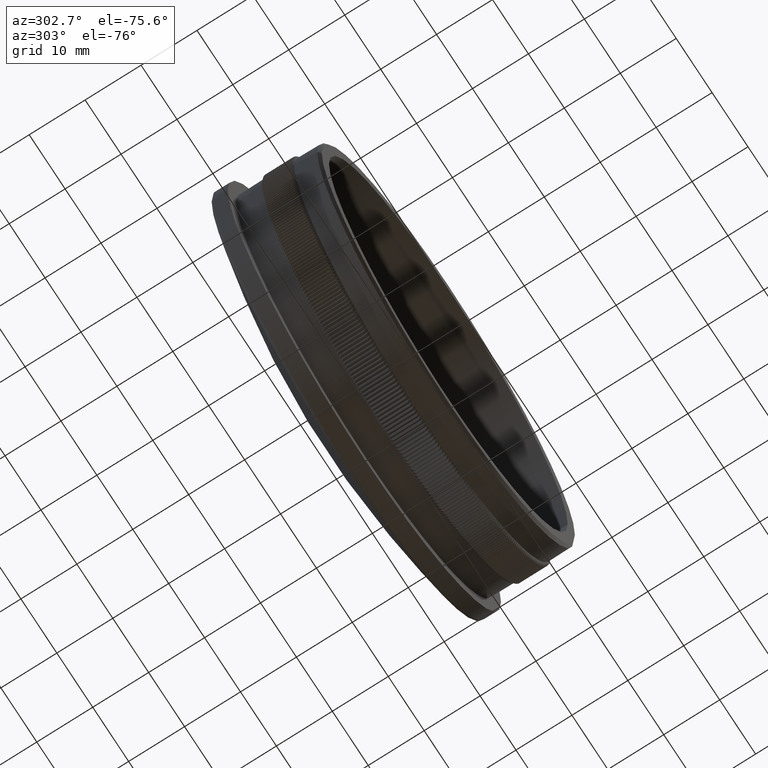
[diagram: clean part render]
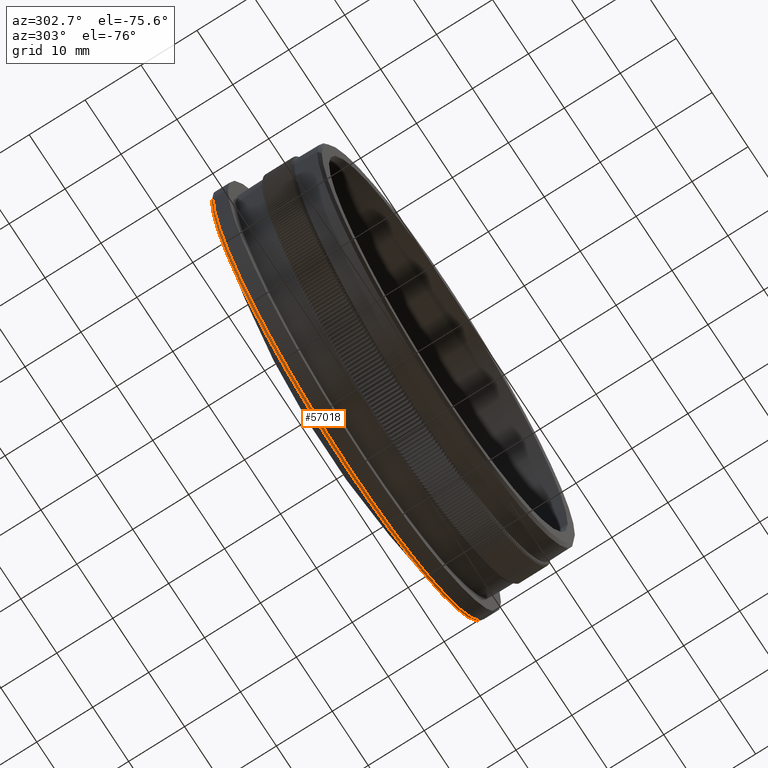
[diagram: same view with one face highlighted and labeled with its STEP entity id]
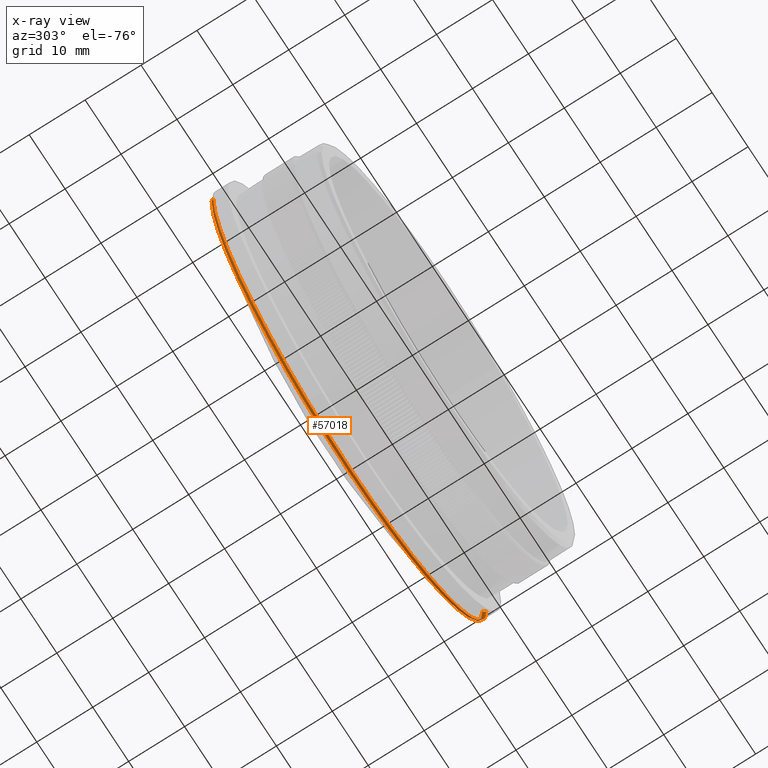
[diagram: x-ray of the same camera — body ghosted, the highlighted face saturated]
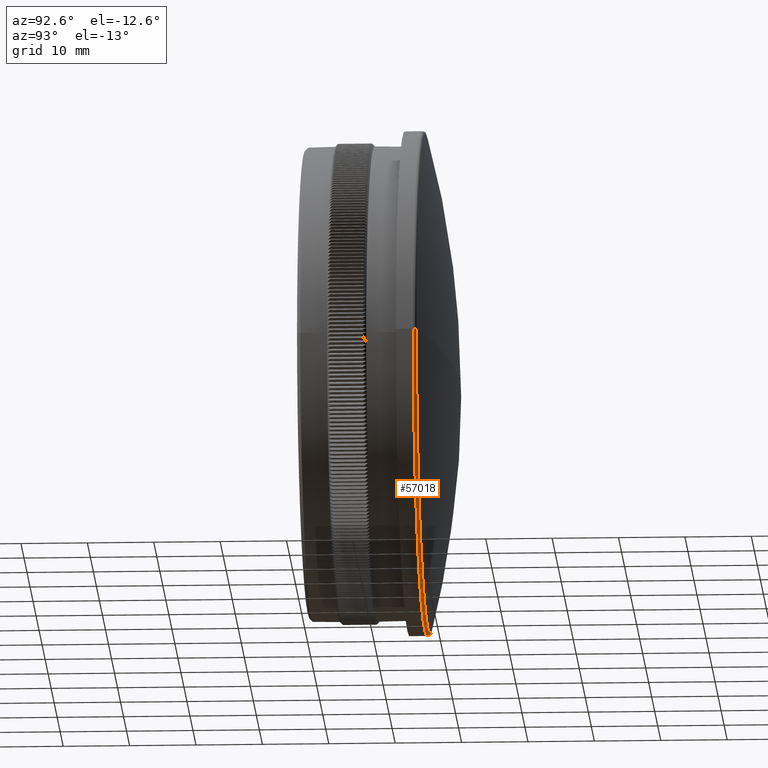
[diagram: same view with one face highlighted and labeled with its STEP entity id]
A machine part, auxiliary view. The second image highlights one B-rep face of the part: STEP entity #57018.
The next image is the same camera in x-ray: the body ghosted, the highlighted face saturated — about 1% of this face is hidden behind the body in this view.
A second angle (auxiliary view) of the same face is appended — the face is thin or edge-on in the first view.
In plain terms, the highlighted toroidal blend (fillet) surface has major radius 37.55 mm and minor (blend) radius 0.5 mm.
Its self-contained STEP definition (entity closure, byte-faithful):
#365 = DIRECTION ( 'NONE',  ( 1.000000000000000000, -3.222860182319315400E-015, 0.0000000000000000000 ) ) ;
#4343 = CARTESIAN_POINT ( 'NONE',  ( 6.811452269998920300E-015, 18.09898642320067800, 0.0000000000000000000 ) ) ;
#4358 = VERTEX_POINT ( 'NONE', #32966 ) ;
#4967 = EDGE_CURVE ( 'NONE', #10119, #30280, #18106, .T. ) ;
#5387 = DIRECTION ( 'NONE',  ( 1.000000000000000000, -3.245114972974590400E-015, 0.0000000000000000000 ) ) ;
#7857 = AXIS2_PLACEMENT_3D ( 'NONE', #49765, #39867, #5387 ) ;
#9492 = DIRECTION ( 'NONE',  ( -1.000000000000000000, 0.0000000000000000000, 0.0000000000000000000 ) ) ;
#10119 = VERTEX_POINT ( 'NONE', #35436 ) ;
#10326 = AXIS2_PLACEMENT_3D ( 'NONE', #39553, #34688, #9492 ) ;
#10957 = TOROIDAL_SURFACE ( 'NONE', #7857, 37.54999999999998300, 0.5000000000000020000 ) ;
#13600 = AXIS2_PLACEMENT_3D ( 'NONE', #55348, #61033, #35343 ) ;
#17857 = CARTESIAN_POINT ( 'NONE',  ( 37.67791230427800300, 18.09898642320055400, 0.0000000000000000000 ) ) ;
#18106 = CIRCLE ( 'NONE', #43555, 37.67791230427797400 ) ;
#20304 = EDGE_CURVE ( 'NONE', #30280, #4358, #22872, .T. ) ;
#22563 = CARTESIAN_POINT ( 'NONE',  ( -38.04999999999998300, 17.61562481693248500, 4.659781070755677400E-015 ) ) ;
#22872 = CIRCLE ( 'NONE', #10326, 0.5000000000000004400 ) ;
#24007 = DIRECTION ( 'NONE',  ( -3.245114972974590400E-015, -1.000000000000000000, -0.0000000000000000000 ) ) ;
#26431 = ORIENTED_EDGE ( 'NONE', *, *, #4967, .T. ) ;
#27755 = EDGE_CURVE ( 'NONE', #10119, #46487, #45891, .T. ) ;
#30280 = VERTEX_POINT ( 'NONE', #17857 ) ;
#32966 = CARTESIAN_POINT ( 'NONE',  ( 38.04999999999999000, 17.61562481693224000, 0.0000000000000000000 ) ) ;
#33483 = ORIENTED_EDGE ( 'NONE', *, *, #27755, .F. ) ;
#34195 = CIRCLE ( 'NONE', #56661, 38.04999999999999000 ) ;
#34688 = DIRECTION ( 'NONE',  ( 0.0000000000000000000, 0.0000000000000000000, -1.000000000000000000 ) ) ;
#35343 = DIRECTION ( 'NONE',  ( 1.000000000000000000, 0.0000000000000000000, -1.224646799147349500E-016 ) ) ;
#35436 = CARTESIAN_POINT ( 'NONE',  ( -37.67791230427751300, 18.09898642320078800, 4.614213470198873300E-015 ) ) ;
#39221 = FACE_OUTER_BOUND ( 'NONE', #50257, .T. ) ;
#39553 = CARTESIAN_POINT ( 'NONE',  ( 37.54999999999999000, 17.61562481693223600, 0.0000000000000000000 ) ) ;
#39867 = DIRECTION ( 'NONE',  ( -3.245114972974590400E-015, -1.000000000000000000, -0.0000000000000000000 ) ) ;
#43555 = AXIS2_PLACEMENT_3D ( 'NONE', #4343, #60303, #365 ) ;
#44462 = DIRECTION ( 'NONE',  ( 1.000000000000000000, -3.282525368471226000E-015, 0.0000000000000000000 ) ) ;
#45490 = EDGE_CURVE ( 'NONE', #46487, #4358, #34195, .T. ) ;
#45891 = CIRCLE ( 'NONE', #13600, 0.5000000000000004400 ) ;
#46487 = VERTEX_POINT ( 'NONE', #22563 ) ;
#46634 = ORIENTED_EDGE ( 'NONE', *, *, #20304, .T. ) ;
#47207 = ORIENTED_EDGE ( 'NONE', *, *, #45490, .F. ) ;
#49765 = CARTESIAN_POINT ( 'NONE',  ( 6.938893903907228400E-015, 17.61562481693235700, 0.0000000000000000000 ) ) ;
#50257 = EDGE_LOOP ( 'NONE', ( #33483, #26431, #46634, #47207 ) ) ;
#55348 = CARTESIAN_POINT ( 'NONE',  ( -37.54999999999997600, 17.61562481693248100, 4.598548730798309100E-015 ) ) ;
#56661 = AXIS2_PLACEMENT_3D ( 'NONE', #64626, #24007, #44462 ) ;
#57018 = ADVANCED_FACE ( 'NONE', ( #39221 ), #10957, .T. ) ;
#60303 = DIRECTION ( 'NONE',  ( -3.245114972974590400E-015, -1.000000000000000000, -0.0000000000000000000 ) ) ;
#61033 = DIRECTION ( 'NONE',  ( 1.224646799147353200E-016, -3.974119664518481600E-031, 1.000000000000000000 ) ) ;
#64626 = CARTESIAN_POINT ( 'NONE',  ( 5.242888284136556000E-015, 17.61562481693236000, 0.0000000000000000000 ) ) ;